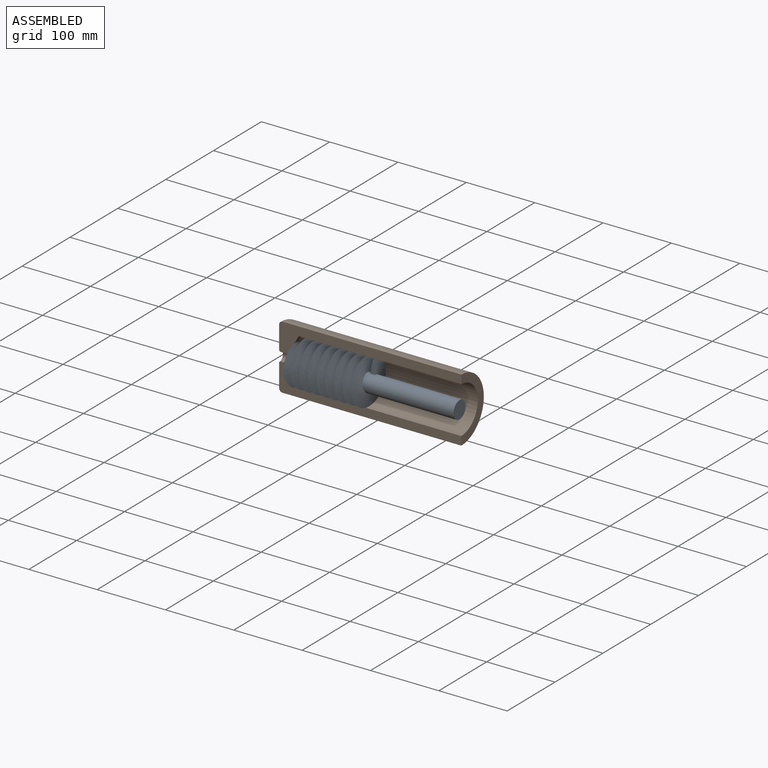
[diagram: assembled view]
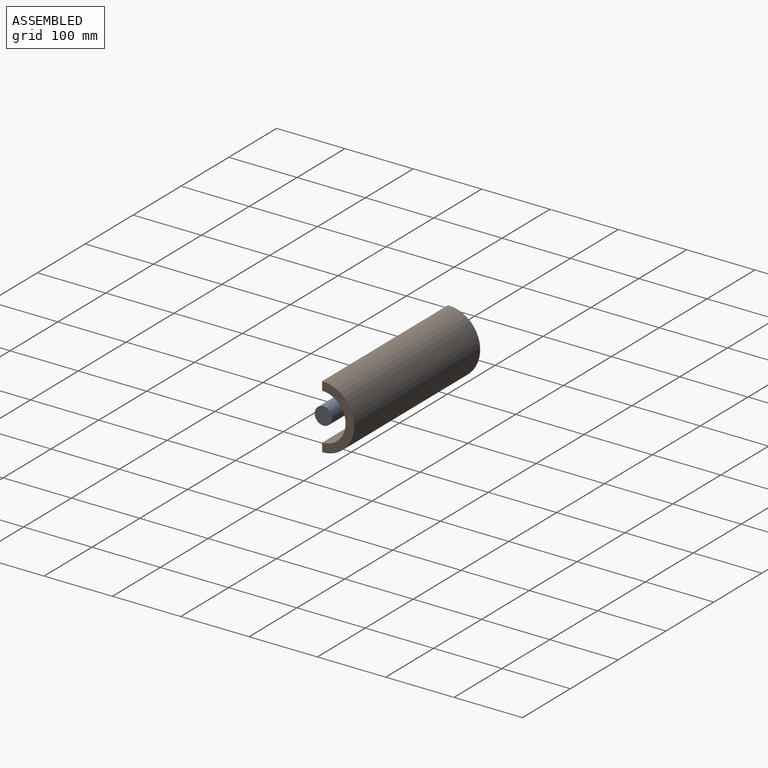
[diagram: assembled view, second angle]
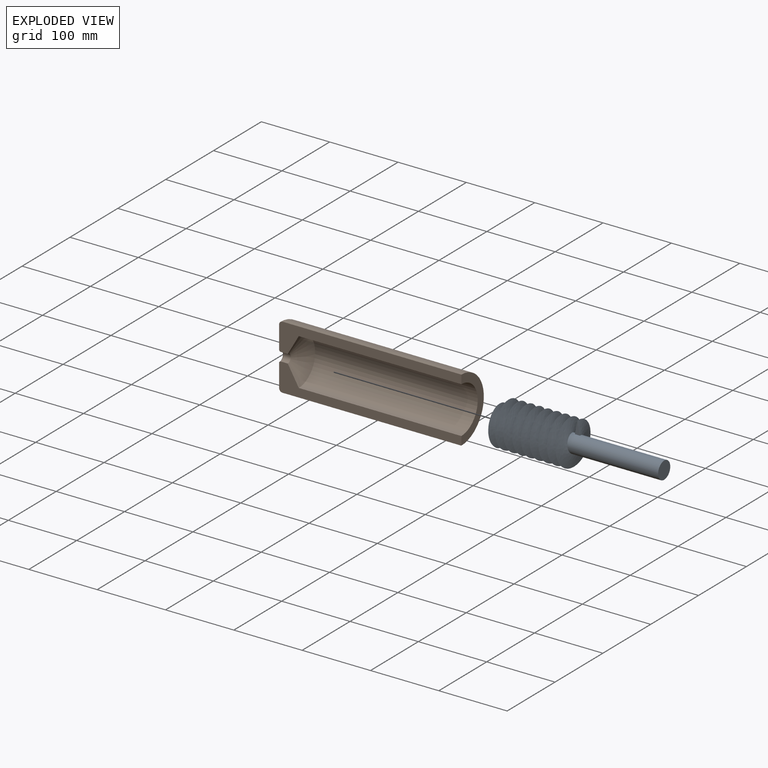
[diagram: exploded view]
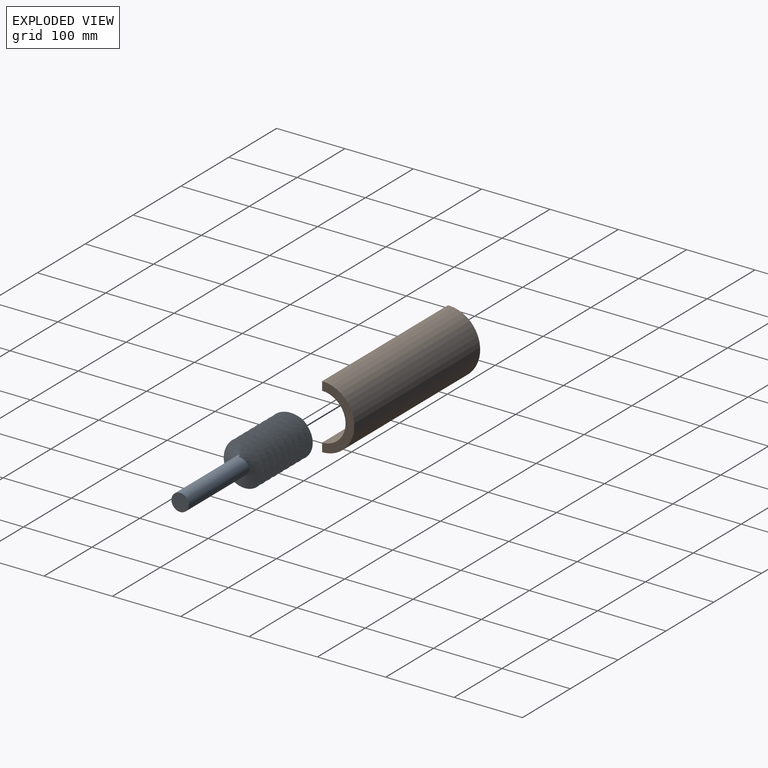
[diagram: exploded view, second angle]
ASSEMBLY  parts=2 mates=2
PART A: 16 faces, bbox 254x63.5x63.5 mm
  f0: bspline ~127.64x63.5mm, area 24669mm2, adj f1,f2,f4,f5,f6,f7,f8,f9
  f1: bspline ~119.7x63.5mm, area 23947.4mm2, adj f0,f3,f4,f5,f6,f7,f8,f9
  f2: cylinder r=12.7mm len=135.89mm, axis (-1,0,0), area 10336.7mm2, adj f0,f12,f13,f14
  f3: cylinder r=12.7mm len=8.84mm, axis (-1,0,0), area 7.6mm2, adj f1,f4,f15
  f4: cylinder r=12.7mm len=25.4mm, axis (-1,0,0), area 366.6mm2, adj f0,f1,f3,f5,f15
  f5: cylinder r=12.7mm len=25.4mm, axis (-1,0,0), area 405.5mm2, adj f0,f1,f4,f6
  f6: cylinder r=12.7mm len=25.4mm, axis (-1,0,0), area 405.6mm2, adj f0,f1,f5,f7
  f7: cylinder r=12.7mm len=25.4mm, axis (-1,0,0), area 405.6mm2, adj f0,f1,f6,f8
  f8: cylinder r=12.7mm len=25.4mm, axis (-1,0,0), area 405.5mm2, adj f0,f1,f7,f9
  f9: cylinder r=12.7mm len=25.4mm, axis (-1,0,0), area 405.4mm2, adj f0,f1,f8,f10
  f10: cylinder r=12.7mm len=25.4mm, axis (-1,0,0), area 405.2mm2, adj f0,f1,f9,f11
  f11: cylinder r=12.7mm len=25.4mm, axis (-1,0,0), area 405.1mm2, adj f0,f1,f10,f12
  f12: cylinder r=12.7mm len=25.4mm, axis (-1,0,0), area 405.1mm2, adj f0,f1,f2,f11
  f13: plane 25.4x25.4mm, normal (1,0,0), area 506.7mm2, adj f2
  f14: plane 19.05x7.62mm, normal (0,-1,0), area 72.6mm2, adj f0,f1,f2
  f15: cone r=37.27mm half-angle=60deg, axis (1,0,0), area 1375.3mm2, adj f0,f1,f3,f4
PART B: 10 faces, bbox 266.7x50.9x101.7 mm
  f0: cylinder r=34.29mm len=237.87mm, axis (1,0,0), area 25624.5mm2, adj f1,f5,f6,f7
  f1: plane 93.98x46.99mm, normal (1,0,0), area 1621.5mm2, adj f0,f2,f6,f7
  f2: cylinder r=46.99mm len=261.62mm, axis (1,0,0), area 38621.2mm2, adj f1,f6,f7,f8
  f3: plane 83.82x41.91mm, normal (-1,0,0), area 2634.9mm2, adj f6,f7,f8,f9
  f4: cylinder r=6.35mm len=12.7mm, axis (1,0,0), area 202.7mm2, adj f5,f6,f7,f9
  f5: cone r=6.35mm half-angle=60deg, axis (1,0,0), area 2059.5mm2, adj f0,f4,f6,f7
  f6: plane 266.7x40.64mm, normal (0,-1,0), area 3960.4mm2, adj f0,f1,f2,f3,f4,f5,f8,f9
  f7: plane 266.7x40.64mm, normal (0,-1,0), area 3960.4mm2, adj f0,f1,f2,f3,f4,f5,f8,f9
  f8: torus R=41.91mm, axis (-1,0,0), area 1131.7mm2, adj f2,f3,f6,f7
  f9: torus R=8.89mm, axis (-1,0,0), area 91.2mm2, adj f3,f4,f6,f7
PLACE A rot(axis=(1,0,0),0deg) t=(-0.67,-22.91,-1.03)mm
PLACE B t=(-4.48,-22.91,-1.03)mm fixed
MATE cylindrical A.f2 <-> B.f0  axis (-1,0,0) through (3,-22.91,-1.03)mm
MATE parallel B.f0 <-> A.f2  axis (1,0,0) through (128.87,-22.91,-1.03)mm
